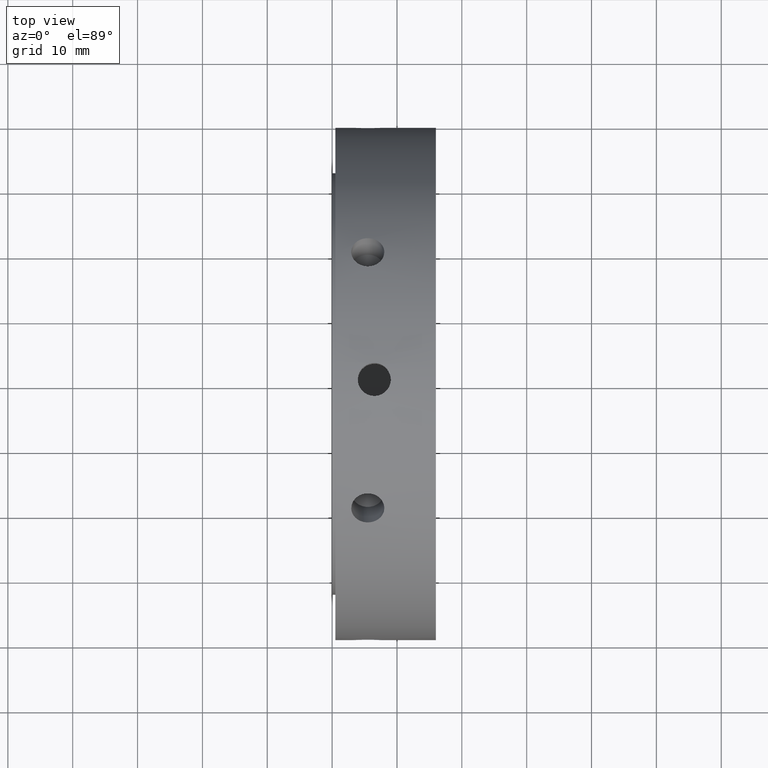
[diagram: clean part render]
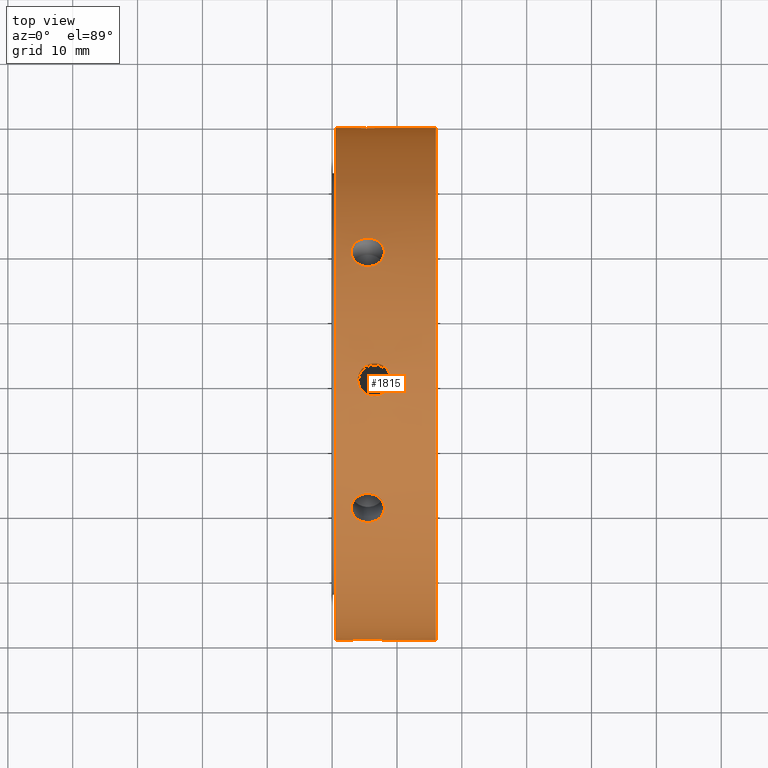
[diagram: same view with one face highlighted and labeled with its STEP entity id]
A machine part, top view. The second image highlights one B-rep face of the part: STEP entity #1815.
In plain terms, the highlighted cylindrical surface (bore or boss wall) has radius 39.5 mm, axis along (1, 0, 0).
Its self-contained STEP definition (entity closure, byte-faithful):
#534=CARTESIAN_POINT('',(2.949999999999987,19.750000000000028,34.208003449485304));
#535=VERTEX_POINT('',#534);
#536=CARTESIAN_POINT('',(8.049999999999987,19.750000000000036,34.208003449485304));
#537=VERTEX_POINT('',#536);
#538=CARTESIAN_POINT('',(2.949999999999987,19.750000000000036,34.208003449485304));
#539=CARTESIAN_POINT('',(2.949999999999987,20.027369877386569,34.047863876111094));
#540=CARTESIAN_POINT('',(3.014026088472861,20.32102763559573,33.87336074013141));
#541=CARTESIAN_POINT('',(3.274290694260217,20.857336734599571,33.545793124296672));
#542=CARTESIAN_POINT('',(3.470524285694507,21.100105391507142,33.392916843656451));
#543=CARTESIAN_POINT('',(3.923231263343356,21.481817617363845,33.148647857412776));
#544=CARTESIAN_POINT('',(4.209913168209863,21.646250583480246,33.040987129929256));
#545=CARTESIAN_POINT('',(4.838154086539575,21.863871141230632,32.897387944839174));
#546=CARTESIAN_POINT('',(5.179720664936673,21.91716674729922,32.86164636428127));
#547=CARTESIAN_POINT('',(5.820279335063301,21.91716674729922,32.86164636428127));
#548=CARTESIAN_POINT('',(6.161845913460398,21.863871141230632,32.897387944839174));
#549=CARTESIAN_POINT('',(6.790086831790107,21.646250583480246,33.040987129929256));
#550=CARTESIAN_POINT('',(7.076768736656616,21.481817617363845,33.148647857412776));
#551=CARTESIAN_POINT('',(7.529475714305464,21.100105391507142,33.392916843656451));
#552=CARTESIAN_POINT('',(7.725709305739756,20.857336734599571,33.545793124296672));
#553=CARTESIAN_POINT('',(7.985973911527113,20.32102763559573,33.87336074013141));
#554=CARTESIAN_POINT('',(8.049999999999987,20.027369877386569,34.047863876111094));
#555=CARTESIAN_POINT('',(8.049999999999987,19.750000000000036,34.208003449485304));
#556=B_SPLINE_CURVE_WITH_KNOTS('',3,(#538,#539,#540,#541,#542,#543,#544,#545,#546,#547,#548,#549,#550,#551,#552,#553,#554,#555),.UNSPECIFIED.,.F.,.U.,(4,2,2,2,2,2,2,2,4),(0.384335089087039,0.480418833111564,0.576502577136089,0.672586377655083,0.768670178174077,0.864753978693071,0.960837779212065,1.056921523236591,1.153005267261116),.UNSPECIFIED.);
#557=EDGE_CURVE('',#535,#537,#556,.T.);
#559=CARTESIAN_POINT('',(8.049999999999987,19.750000000000039,34.208003449485304));
#560=CARTESIAN_POINT('',(8.049999999999987,19.472630122613506,34.368143022859513));
#561=CARTESIAN_POINT('',(7.985973911527116,19.174677094710471,34.535206533497195));
#562=CARTESIAN_POINT('',(7.72570930573976,18.622840668438563,34.835880029597888));
#563=CARTESIAN_POINT('',(7.529475714305467,18.369061597314271,34.96968571340237));
#564=CARTESIAN_POINT('',(7.076768736656618,17.966662336942218,35.17812370480754));
#565=CARTESIAN_POINT('',(6.790086831790108,17.791208928893383,35.266696466942207));
#566=CARTESIAN_POINT('',(6.161845913460398,17.558038107767434,35.383361805794735));
#567=CARTESIAN_POINT('',(5.820279335063301,17.500437187998589,35.411646364281275));
#568=CARTESIAN_POINT('',(5.499999999999988,17.500437187998589,35.411646364281275));
#569=CARTESIAN_POINT('',(5.179720664936673,17.500437187998589,35.411646364281275));
#570=CARTESIAN_POINT('',(4.838154086539575,17.55803810776743,35.383361805794735));
#571=CARTESIAN_POINT('',(4.209913168209866,17.791208928893379,35.2666964669422));
#572=CARTESIAN_POINT('',(3.923231263343356,17.966662336942218,35.17812370480754));
#573=CARTESIAN_POINT('',(3.470524285694507,18.369061597314271,34.96968571340237));
#574=CARTESIAN_POINT('',(3.274290694260216,18.62284066843856,34.835880029597888));
#575=CARTESIAN_POINT('',(3.014026088472859,19.174677094710468,34.535206533497195));
#576=CARTESIAN_POINT('',(2.949999999999987,19.472630122613506,34.368143022859513));
#577=CARTESIAN_POINT('',(2.949999999999987,19.750000000000039,34.208003449485304));
#578=B_SPLINE_CURVE_WITH_KNOTS('',3,(#559,#560,#561,#562,#563,#564,#565,#566,#567,#568,#569,#570,#571,#572,#573,#574,#575,#576,#577),.UNSPECIFIED.,.F.,.U.,(4,2,2,2,3,2,2,2,4),(1.153005267261116,1.249089011285641,1.345172755310166,1.44125655582916,1.537340356348155,1.633424156867149,1.729507957386143,1.825591701410668,1.921675445435193),.UNSPECIFIED.);
#579=EDGE_CURVE('',#537,#535,#578,.T.);
#646=CARTESIAN_POINT('',(2.949999999999987,39.5,-2.631229E-014));
#647=VERTEX_POINT('',#646);
#648=CARTESIAN_POINT('',(8.049999999999987,39.5,-3.108624E-014));
#649=VERTEX_POINT('',#648);
#650=CARTESIAN_POINT('',(2.949999999999987,39.5,-3.018419E-014));
#651=CARTESIAN_POINT('',(2.949999999999987,39.5,-0.320279146748447));
#652=CARTESIAN_POINT('',(3.01402608847286,39.495704730306123,-0.661845793365811));
#653=CARTESIAN_POINT('',(3.274290694260216,39.480177403038056,-1.29008690530125));
#654=CARTESIAN_POINT('',(3.470524285694507,39.469166988821335,-1.576768869745943));
#655=CARTESIAN_POINT('',(3.923231263343356,39.448479954305988,-2.029475847394792));
#656=CARTESIAN_POINT('',(4.209913168209865,39.437459512373543,-2.225709337012975));
#657=CARTESIAN_POINT('',(4.838154086539575,39.421909248997977,-2.48597386095559));
#658=CARTESIAN_POINT('',(5.179720664936673,39.417603935297734,-2.550000000000031));
#659=CARTESIAN_POINT('',(5.820279335063301,39.417603935297734,-2.55000000000003));
#660=CARTESIAN_POINT('',(6.161845913460397,39.421909248997977,-2.485973860955591));
#661=CARTESIAN_POINT('',(6.790086831790107,39.437459512373543,-2.225709337012977));
#662=CARTESIAN_POINT('',(7.076768736656618,39.448479954305988,-2.029475847394793));
#663=CARTESIAN_POINT('',(7.529475714305467,39.469166988821335,-1.576768869745944));
#664=CARTESIAN_POINT('',(7.725709305739759,39.480177403038056,-1.290086905301251));
#665=CARTESIAN_POINT('',(7.985973911527116,39.495704730306123,-0.661845793365812));
#666=CARTESIAN_POINT('',(8.049999999999987,39.5,-0.320279146748448));
#667=CARTESIAN_POINT('',(8.049999999999987,39.5,-3.122502E-014));
#668=B_SPLINE_CURVE_WITH_KNOTS('',3,(#650,#651,#652,#653,#654,#655,#656,#657,#658,#659,#660,#661,#662,#663,#664,#665,#666,#667),.UNSPECIFIED.,.F.,.U.,(4,2,2,2,2,2,2,2,4),(0.384335089087039,0.480418833111564,0.576502577136089,0.672586377655083,0.768670178174077,0.864753978693072,0.960837779212066,1.056921523236591,1.153005267261116),.UNSPECIFIED.);
#669=EDGE_CURVE('',#647,#649,#668,.T.);
#671=CARTESIAN_POINT('',(8.049999999999987,39.5,-3.129441E-014));
#672=CARTESIAN_POINT('',(8.049999999999987,39.5,0.320279146748385));
#673=CARTESIAN_POINT('',(7.985973911527116,39.495704730306123,0.661845793365748));
#674=CARTESIAN_POINT('',(7.725709305739761,39.480177403038056,1.290086905301187));
#675=CARTESIAN_POINT('',(7.529475714305468,39.469166988821335,1.57676886974588));
#676=CARTESIAN_POINT('',(7.07676873665662,39.448479954305988,2.029475847394729));
#677=CARTESIAN_POINT('',(6.790086831790108,39.43745951237355,2.225709337012914));
#678=CARTESIAN_POINT('',(6.161845913460398,39.421909248997984,2.48597386095553));
#679=CARTESIAN_POINT('',(5.820279335063302,39.417603935297734,2.54999999999997));
#680=CARTESIAN_POINT('',(5.499999999999988,39.417603935297734,2.54999999999997));
#681=CARTESIAN_POINT('',(5.179720664936673,39.417603935297734,2.54999999999997));
#682=CARTESIAN_POINT('',(4.838154086539576,39.421909248997984,2.48597386095553));
#683=CARTESIAN_POINT('',(4.209913168209866,39.43745951237355,2.225709337012915));
#684=CARTESIAN_POINT('',(3.923231263343356,39.448479954305988,2.029475847394731));
#685=CARTESIAN_POINT('',(3.470524285694507,39.469166988821335,1.576768869745883));
#686=CARTESIAN_POINT('',(3.274290694260215,39.480177403038056,1.290086905301189));
#687=CARTESIAN_POINT('',(3.014026088472859,39.495704730306123,0.661845793365749));
#688=CARTESIAN_POINT('',(2.949999999999987,39.5,0.320279146748386));
#689=CARTESIAN_POINT('',(2.949999999999987,39.5,-3.032297E-014));
#690=B_SPLINE_CURVE_WITH_KNOTS('',3,(#671,#672,#673,#674,#675,#676,#677,#678,#679,#680,#681,#682,#683,#684,#685,#686,#687,#688,#689),.UNSPECIFIED.,.F.,.U.,(4,2,2,2,3,2,2,2,4),(1.153005267261116,1.249089011285641,1.345172755310166,1.44125655582916,1.537340356348155,1.633424156867149,1.729507957386144,1.825591701410668,1.921675445435193),.UNSPECIFIED.);
#691=EDGE_CURVE('',#649,#647,#690,.T.);
#758=CARTESIAN_POINT('',(2.949999999999987,19.749999999999989,-34.208003449485332));
#759=VERTEX_POINT('',#758);
#760=CARTESIAN_POINT('',(8.049999999999987,19.749999999999982,-34.208003449485332));
#761=VERTEX_POINT('',#760);
#762=CARTESIAN_POINT('',(2.949999999999988,19.749999999999986,-34.208003449485325));
#763=CARTESIAN_POINT('',(2.949999999999988,19.472630122613456,-34.368143022859535));
#764=CARTESIAN_POINT('',(3.014026088472859,19.174677094710422,-34.535206533497224));
#765=CARTESIAN_POINT('',(3.274290694260215,18.622840668438513,-34.835880029597924));
#766=CARTESIAN_POINT('',(3.470524285694507,18.369061597314222,-34.969685713402399));
#767=CARTESIAN_POINT('',(3.923231263343356,17.966662336942171,-35.178123704807561));
#768=CARTESIAN_POINT('',(4.209913168209865,17.791208928893333,-35.266696466942228));
#769=CARTESIAN_POINT('',(4.838154086539574,17.558038107767381,-35.383361805794763));
#770=CARTESIAN_POINT('',(5.179720664936673,17.500437187998543,-35.411646364281303));
#771=CARTESIAN_POINT('',(5.820279335063301,17.500437187998543,-35.411646364281303));
#772=CARTESIAN_POINT('',(6.161845913460398,17.558038107767388,-35.383361805794763));
#773=CARTESIAN_POINT('',(6.790086831790108,17.791208928893337,-35.266696466942228));
#774=CARTESIAN_POINT('',(7.076768736656618,17.966662336942171,-35.178123704807561));
#775=CARTESIAN_POINT('',(7.529475714305467,18.369061597314222,-34.969685713402392));
#776=CARTESIAN_POINT('',(7.725709305739761,18.622840668438517,-34.835880029597924));
#777=CARTESIAN_POINT('',(7.985973911527116,19.174677094710422,-34.535206533497224));
#778=CARTESIAN_POINT('',(8.049999999999987,19.472630122613456,-34.368143022859535));
#779=CARTESIAN_POINT('',(8.049999999999987,19.749999999999986,-34.208003449485325));
#780=B_SPLINE_CURVE_WITH_KNOTS('',3,(#762,#763,#764,#765,#766,#767,#768,#769,#770,#771,#772,#773,#774,#775,#776,#777,#778,#779),.UNSPECIFIED.,.F.,.U.,(4,2,2,2,2,2,2,2,4),(0.384335089087039,0.480418833111564,0.576502577136089,0.672586377655083,0.768670178174077,0.864753978693072,0.960837779212066,1.056921523236591,1.153005267261116),.UNSPECIFIED.);
#781=EDGE_CURVE('',#759,#761,#780,.T.);
#783=CARTESIAN_POINT('',(8.049999999999987,19.749999999999986,-34.208003449485325));
#784=CARTESIAN_POINT('',(8.049999999999987,20.027369877386519,-34.047863876111116));
#785=CARTESIAN_POINT('',(7.985973911527116,20.32102763559568,-33.873360740131446));
#786=CARTESIAN_POINT('',(7.725709305739761,20.857336734599521,-33.545793124296701));
#787=CARTESIAN_POINT('',(7.529475714305467,21.1001053915071,-33.392916843656486));
#788=CARTESIAN_POINT('',(7.076768736656618,21.481817617363799,-33.148647857412811));
#789=CARTESIAN_POINT('',(6.790086831790109,21.646250583480196,-33.040987129929292));
#790=CARTESIAN_POINT('',(6.161845913460398,21.863871141230582,-32.89738794483921));
#791=CARTESIAN_POINT('',(5.820279335063302,21.917166747299177,-32.861646364281299));
#792=CARTESIAN_POINT('',(5.499999999999988,21.917166747299177,-32.861646364281299));
#793=CARTESIAN_POINT('',(5.179720664936673,21.917166747299177,-32.861646364281299));
#794=CARTESIAN_POINT('',(4.838154086539577,21.863871141230582,-32.89738794483921));
#795=CARTESIAN_POINT('',(4.209913168209866,21.646250583480196,-33.040987129929292));
#796=CARTESIAN_POINT('',(3.923231263343356,21.481817617363799,-33.148647857412811));
#797=CARTESIAN_POINT('',(3.470524285694507,21.1001053915071,-33.392916843656486));
#798=CARTESIAN_POINT('',(3.274290694260213,20.857336734599521,-33.545793124296701));
#799=CARTESIAN_POINT('',(3.014026088472858,20.32102763559568,-33.873360740131446));
#800=CARTESIAN_POINT('',(2.949999999999987,20.027369877386519,-34.047863876111116));
#801=CARTESIAN_POINT('',(2.949999999999987,19.749999999999986,-34.208003449485325));
#802=B_SPLINE_CURVE_WITH_KNOTS('',3,(#783,#784,#785,#786,#787,#788,#789,#790,#791,#792,#793,#794,#795,#796,#797,#798,#799,#800,#801),.UNSPECIFIED.,.F.,.U.,(4,2,2,2,3,2,2,2,4),(1.153005267261116,1.249089011285641,1.345172755310166,1.441256555829161,1.537340356348155,1.633424156867149,1.729507957386144,1.825591701410669,1.921675445435194),.UNSPECIFIED.);
#803=EDGE_CURVE('',#761,#759,#802,.T.);
#870=CARTESIAN_POINT('',(2.949999999999987,-19.750000000000011,-34.208003449485318));
#871=VERTEX_POINT('',#870);
#872=CARTESIAN_POINT('',(8.049999999999987,-19.750000000000018,-34.208003449485311));
#873=VERTEX_POINT('',#872);
#874=CARTESIAN_POINT('',(2.949999999999987,-19.750000000000018,-34.208003449485311));
#875=CARTESIAN_POINT('',(2.949999999999987,-20.027369877386548,-34.047863876111101));
#876=CARTESIAN_POINT('',(3.014026088472861,-20.321027635595712,-33.873360740131425));
#877=CARTESIAN_POINT('',(3.274290694260218,-20.857336734599553,-33.545793124296679));
#878=CARTESIAN_POINT('',(3.470524285694506,-21.100105391507125,-33.392916843656465));
#879=CARTESIAN_POINT('',(3.923231263343356,-21.481817617363824,-33.148647857412783));
#880=CARTESIAN_POINT('',(4.209913168209863,-21.646250583480221,-33.040987129929263));
#881=CARTESIAN_POINT('',(4.838154086539575,-21.863871141230607,-32.897387944839181));
#882=CARTESIAN_POINT('',(5.179720664936673,-21.917166747299206,-32.861646364281285));
#883=CARTESIAN_POINT('',(5.820279335063301,-21.917166747299206,-32.861646364281285));
#884=CARTESIAN_POINT('',(6.161845913460398,-21.863871141230607,-32.897387944839181));
#885=CARTESIAN_POINT('',(6.790086831790108,-21.646250583480221,-33.040987129929263));
#886=CARTESIAN_POINT('',(7.076768736656616,-21.481817617363824,-33.148647857412783));
#887=CARTESIAN_POINT('',(7.529475714305466,-21.100105391507125,-33.392916843656465));
#888=CARTESIAN_POINT('',(7.72570930573976,-20.857336734599549,-33.545793124296686));
#889=CARTESIAN_POINT('',(7.985973911527116,-20.321027635595705,-33.873360740131432));
#890=CARTESIAN_POINT('',(8.049999999999987,-20.027369877386548,-34.047863876111101));
#891=CARTESIAN_POINT('',(8.049999999999987,-19.750000000000018,-34.208003449485311));
#892=B_SPLINE_CURVE_WITH_KNOTS('',3,(#874,#875,#876,#877,#878,#879,#880,#881,#882,#883,#884,#885,#886,#887,#888,#889,#890,#891),.UNSPECIFIED.,.F.,.U.,(4,2,2,2,2,2,2,2,4),(0.384335089087039,0.480418833111564,0.576502577136089,0.672586377655083,0.768670178174077,0.864753978693072,0.960837779212066,1.056921523236591,1.153005267261116),.UNSPECIFIED.);
#893=EDGE_CURVE('',#871,#873,#892,.T.);
#895=CARTESIAN_POINT('',(8.049999999999987,-19.750000000000018,-34.208003449485311));
#896=CARTESIAN_POINT('',(8.049999999999987,-19.472630122613484,-34.36814302285952));
#897=CARTESIAN_POINT('',(7.985973911527116,-19.17467709471045,-34.535206533497202));
#898=CARTESIAN_POINT('',(7.72570930573976,-18.622840668438542,-34.835880029597902));
#899=CARTESIAN_POINT('',(7.529475714305468,-18.369061597314253,-34.969685713402384));
#900=CARTESIAN_POINT('',(7.07676873665662,-17.9666623369422,-35.178123704807547));
#901=CARTESIAN_POINT('',(6.790086831790109,-17.791208928893361,-35.266696466942214));
#902=CARTESIAN_POINT('',(6.161845913460398,-17.558038107767413,-35.383361805794749));
#903=CARTESIAN_POINT('',(5.820279335063301,-17.500437187998568,-35.411646364281289));
#904=CARTESIAN_POINT('',(5.499999999999988,-17.500437187998568,-35.411646364281289));
#905=CARTESIAN_POINT('',(5.179720664936673,-17.500437187998568,-35.411646364281289));
#906=CARTESIAN_POINT('',(4.838154086539576,-17.558038107767413,-35.383361805794749));
#907=CARTESIAN_POINT('',(4.209913168209865,-17.791208928893361,-35.266696466942214));
#908=CARTESIAN_POINT('',(3.923231263343356,-17.9666623369422,-35.178123704807547));
#909=CARTESIAN_POINT('',(3.470524285694508,-18.36906159731425,-34.969685713402384));
#910=CARTESIAN_POINT('',(3.274290694260215,-18.622840668438542,-34.835880029597902));
#911=CARTESIAN_POINT('',(3.014026088472859,-19.174677094710447,-34.535206533497202));
#912=CARTESIAN_POINT('',(2.949999999999988,-19.472630122613484,-34.36814302285952));
#913=CARTESIAN_POINT('',(2.949999999999988,-19.750000000000018,-34.208003449485311));
#914=B_SPLINE_CURVE_WITH_KNOTS('',3,(#895,#896,#897,#898,#899,#900,#901,#902,#903,#904,#905,#906,#907,#908,#909,#910,#911,#912,#913),.UNSPECIFIED.,.F.,.U.,(4,2,2,2,3,2,2,2,4),(1.153005267261116,1.249089011285641,1.345172755310166,1.44125655582916,1.537340356348155,1.633424156867149,1.729507957386143,1.825591701410668,1.921675445435193),.UNSPECIFIED.);
#915=EDGE_CURVE('',#873,#871,#914,.T.);
#982=CARTESIAN_POINT('',(2.949999999999987,-39.5,1.096345E-014));
#983=VERTEX_POINT('',#982);
#984=CARTESIAN_POINT('',(8.049999999999987,-39.5,1.554312E-014));
#985=VERTEX_POINT('',#984);
#986=CARTESIAN_POINT('',(2.949999999999987,-39.5,1.360023E-014));
#987=CARTESIAN_POINT('',(2.949999999999987,-39.5,0.320279146748431));
#988=CARTESIAN_POINT('',(3.014026088472859,-39.495704730306123,0.661845793365794));
#989=CARTESIAN_POINT('',(3.274290694260214,-39.480177403038056,1.290086905301233));
#990=CARTESIAN_POINT('',(3.470524285694507,-39.469166988821335,1.576768869745926));
#991=CARTESIAN_POINT('',(3.923231263343356,-39.448479954305988,2.029475847394775));
#992=CARTESIAN_POINT('',(4.209913168209865,-39.437459512373543,2.225709337012959));
#993=CARTESIAN_POINT('',(4.838154086539575,-39.421909248997977,2.485973860955574));
#994=CARTESIAN_POINT('',(5.179720664936673,-39.417603935297734,2.550000000000015));
#995=CARTESIAN_POINT('',(5.820279335063301,-39.417603935297734,2.550000000000015));
#996=CARTESIAN_POINT('',(6.161845913460398,-39.421909248997977,2.485973860955574));
#997=CARTESIAN_POINT('',(6.790086831790108,-39.437459512373543,2.225709337012959));
#998=CARTESIAN_POINT('',(7.076768736656618,-39.448479954305988,2.029475847394776));
#999=CARTESIAN_POINT('',(7.529475714305467,-39.469166988821335,1.576768869745928));
#1000=CARTESIAN_POINT('',(7.725709305739759,-39.480177403038056,1.290086905301234));
#1001=CARTESIAN_POINT('',(7.985973911527116,-39.495704730306123,0.661845793365795));
#1002=CARTESIAN_POINT('',(8.049999999999987,-39.5,0.320279146748431));
#1003=CARTESIAN_POINT('',(8.049999999999987,-39.5,1.457168E-014));
#1004=B_SPLINE_CURVE_WITH_KNOTS('',3,(#986,#987,#988,#989,#990,#991,#992,#993,#994,#995,#996,#997,#998,#999,#1000,#1001,#1002,#1003),.UNSPECIFIED.,.F.,.U.,(4,2,2,2,2,2,2,2,4),(0.384335089087039,0.480418833111564,0.576502577136089,0.672586377655083,0.768670178174077,0.864753978693072,0.960837779212066,1.056921523236591,1.153005267261116),.UNSPECIFIED.);
#1005=EDGE_CURVE('',#983,#985,#1004,.T.);
#1007=CARTESIAN_POINT('',(8.049999999999987,-39.5,1.457168E-014));
#1008=CARTESIAN_POINT('',(8.049999999999987,-39.5,-0.320279146748401));
#1009=CARTESIAN_POINT('',(7.985973911527116,-39.495704730306123,-0.661845793365764));
#1010=CARTESIAN_POINT('',(7.725709305739761,-39.480177403038056,-1.290086905301202));
#1011=CARTESIAN_POINT('',(7.52947571430547,-39.469166988821335,-1.576768869745896));
#1012=CARTESIAN_POINT('',(7.07676873665662,-39.448479954305988,-2.029475847394746));
#1013=CARTESIAN_POINT('',(6.790086831790108,-39.43745951237355,-2.225709337012931));
#1014=CARTESIAN_POINT('',(6.161845913460398,-39.421909248997984,-2.485973860955546));
#1015=CARTESIAN_POINT('',(5.820279335063301,-39.417603935297734,-2.549999999999986));
#1016=CARTESIAN_POINT('',(5.499999999999988,-39.417603935297734,-2.549999999999986));
#1017=CARTESIAN_POINT('',(5.179720664936673,-39.417603935297734,-2.549999999999986));
#1018=CARTESIAN_POINT('',(4.838154086539576,-39.421909248997984,-2.485973860955546));
#1019=CARTESIAN_POINT('',(4.209913168209866,-39.43745951237355,-2.225709337012932));
#1020=CARTESIAN_POINT('',(3.923231263343356,-39.448479954305988,-2.029475847394748));
#1021=CARTESIAN_POINT('',(3.470524285694507,-39.469166988821335,-1.576768869745899));
#1022=CARTESIAN_POINT('',(3.274290694260215,-39.480177403038056,-1.290086905301205));
#1023=CARTESIAN_POINT('',(3.014026088472859,-39.495704730306123,-0.661845793365766));
#1024=CARTESIAN_POINT('',(2.949999999999987,-39.5,-0.320279146748402));
#1025=CARTESIAN_POINT('',(2.949999999999987,-39.5,1.477984E-014));
#1026=B_SPLINE_CURVE_WITH_KNOTS('',3,(#1007,#1008,#1009,#1010,#1011,#1012,#1013,#1014,#1015,#1016,#1017,#1018,#1019,#1020,#1021,#1022,#1023,#1024,#1025),.UNSPECIFIED.,.F.,.U.,(4,2,2,2,3,2,2,2,4),(1.153005267261116,1.249089011285641,1.345172755310166,1.441256555829161,1.537340356348155,1.633424156867149,1.729507957386144,1.825591701410669,1.921675445435194),.UNSPECIFIED.);
#1027=EDGE_CURVE('',#985,#983,#1026,.T.);
#1131=CARTESIAN_POINT('',(2.949999999999987,-19.749999999999993,34.208003449485325));
#1132=VERTEX_POINT('',#1131);
#1133=CARTESIAN_POINT('',(8.049999999999987,-19.749999999999989,34.208003449485325));
#1134=VERTEX_POINT('',#1133);
#1135=CARTESIAN_POINT('',(2.949999999999988,-19.749999999999993,34.208003449485325));
#1136=CARTESIAN_POINT('',(2.949999999999988,-19.472630122613459,34.368143022859535));
#1137=CARTESIAN_POINT('',(3.014026088472859,-19.174677094710429,34.535206533497217));
#1138=CARTESIAN_POINT('',(3.274290694260213,-18.622840668438524,34.835880029597917));
#1139=CARTESIAN_POINT('',(3.470524285694507,-18.369061597314229,34.969685713402392));
#1140=CARTESIAN_POINT('',(3.923231263343355,-17.966662336942175,35.178123704807561));
#1141=CARTESIAN_POINT('',(4.209913168209863,-17.791208928893337,35.266696466942228));
#1142=CARTESIAN_POINT('',(4.838154086539573,-17.558038107767388,35.383361805794763));
#1143=CARTESIAN_POINT('',(5.179720664936673,-17.500437187998543,35.411646364281296));
#1144=CARTESIAN_POINT('',(5.820279335063301,-17.500437187998543,35.411646364281296));
#1145=CARTESIAN_POINT('',(6.161845913460401,-17.558038107767388,35.383361805794763));
#1146=CARTESIAN_POINT('',(6.790086831790111,-17.791208928893337,35.266696466942228));
#1147=CARTESIAN_POINT('',(7.076768736656618,-17.966662336942171,35.178123704807554));
#1148=CARTESIAN_POINT('',(7.529475714305467,-18.369061597314225,34.969685713402392));
#1149=CARTESIAN_POINT('',(7.725709305739762,-18.622840668438521,34.835880029597924));
#1150=CARTESIAN_POINT('',(7.985973911527116,-19.174677094710425,34.535206533497224));
#1151=CARTESIAN_POINT('',(8.049999999999987,-19.472630122613459,34.368143022859535));
#1152=CARTESIAN_POINT('',(8.049999999999987,-19.749999999999993,34.208003449485325));
#1153=B_SPLINE_CURVE_WITH_KNOTS('',3,(#1135,#1136,#1137,#1138,#1139,#1140,#1141,#1142,#1143,#1144,#1145,#1146,#1147,#1148,#1149,#1150,#1151,#1152),.UNSPECIFIED.,.F.,.U.,(4,2,2,2,2,2,2,2,4),(0.384335089087039,0.480418833111564,0.576502577136088,0.672586377655083,0.768670178174077,0.864753978693071,0.960837779212066,1.056921523236591,1.153005267261116),.UNSPECIFIED.);
#1154=EDGE_CURVE('',#1132,#1134,#1153,.T.);
#1156=CARTESIAN_POINT('',(8.049999999999987,-19.749999999999993,34.208003449485325));
#1157=CARTESIAN_POINT('',(8.049999999999987,-20.027369877386523,34.047863876111123));
#1158=CARTESIAN_POINT('',(7.985973911527116,-20.321027635595676,33.873360740131446));
#1159=CARTESIAN_POINT('',(7.725709305739762,-20.857336734599521,33.545793124296701));
#1160=CARTESIAN_POINT('',(7.529475714305467,-21.1001053915071,33.392916843656486));
#1161=CARTESIAN_POINT('',(7.076768736656618,-21.481817617363799,33.148647857412797));
#1162=CARTESIAN_POINT('',(6.790086831790108,-21.646250583480203,33.040987129929285));
#1163=CARTESIAN_POINT('',(6.161845913460398,-21.86387114123059,32.897387944839203));
#1164=CARTESIAN_POINT('',(5.820279335063301,-21.917166747299181,32.861646364281299));
#1165=CARTESIAN_POINT('',(5.499999999999988,-21.917166747299181,32.861646364281299));
#1166=CARTESIAN_POINT('',(5.179720664936673,-21.917166747299181,32.861646364281299));
#1167=CARTESIAN_POINT('',(4.838154086539578,-21.86387114123059,32.897387944839203));
#1168=CARTESIAN_POINT('',(4.209913168209868,-21.646250583480203,33.040987129929285));
#1169=CARTESIAN_POINT('',(3.923231263343356,-21.481817617363799,33.148647857412797));
#1170=CARTESIAN_POINT('',(3.470524285694507,-21.1001053915071,33.392916843656486));
#1171=CARTESIAN_POINT('',(3.274290694260216,-20.857336734599528,33.545793124296701));
#1172=CARTESIAN_POINT('',(3.01402608847286,-20.321027635595691,33.873360740131439));
#1173=CARTESIAN_POINT('',(2.949999999999987,-20.027369877386519,34.047863876111123));
#1174=CARTESIAN_POINT('',(2.949999999999987,-19.749999999999986,34.208003449485332));
#1175=B_SPLINE_CURVE_WITH_KNOTS('',3,(#1156,#1157,#1158,#1159,#1160,#1161,#1162,#1163,#1164,#1165,#1166,#1167,#1168,#1169,#1170,#1171,#1172,#1173,#1174),.UNSPECIFIED.,.F.,.U.,(4,2,2,2,3,2,2,2,4),(1.153005267261116,1.249089011285641,1.345172755310166,1.44125655582916,1.537340356348155,1.633424156867149,1.729507957386143,1.825591701410668,1.921675445435193),.UNSPECIFIED.);
#1176=EDGE_CURVE('',#1134,#1132,#1175,.T.);
#1255=CARTESIAN_POINT('',(6.499999999999987,35.411646364281289,-17.500437187998568));
#1256=VERTEX_POINT('',#1255);
#1257=CARTESIAN_POINT('',(6.499999999999987,35.411646364281289,-17.500437187998578));
#1258=CARTESIAN_POINT('',(6.179720664936673,35.411646364281289,-17.500437187998578));
#1259=CARTESIAN_POINT('',(5.838154086539578,35.383361805794742,-17.55803810776742));
#1260=CARTESIAN_POINT('',(5.209913168209869,35.266696466942207,-17.791208928893369));
#1261=CARTESIAN_POINT('',(4.923231263343356,35.17812370480754,-17.9666623369422));
#1262=CARTESIAN_POINT('',(4.470524285694507,34.96968571340237,-18.36906159731425));
#1263=CARTESIAN_POINT('',(4.274290694260218,34.835880029597902,-18.622840668438545));
#1264=CARTESIAN_POINT('',(4.014026088472861,34.535206533497202,-19.174677094710454));
#1265=CARTESIAN_POINT('',(3.949999999999987,34.368143022859513,-19.472630122613484));
#1266=CARTESIAN_POINT('',(3.949999999999986,34.047863876111094,-20.027369877386548));
#1267=CARTESIAN_POINT('',(4.014026088472857,33.873360740131425,-20.321027635595716));
#1268=CARTESIAN_POINT('',(4.274290694260215,33.545793124296679,-20.85733673459956));
#1269=CARTESIAN_POINT('',(4.470524285694506,33.392916843656465,-21.100105391507128));
#1270=CARTESIAN_POINT('',(4.923231263343354,33.148647857412776,-21.481817617363834));
#1271=CARTESIAN_POINT('',(5.209913168209866,33.040987129929263,-21.646250583480231));
#1272=CARTESIAN_POINT('',(5.838154086539574,32.897387944839181,-21.863871141230618));
#1273=CARTESIAN_POINT('',(6.179720664936673,32.861646364281285,-21.917166747299198));
#1274=CARTESIAN_POINT('',(6.820279335063302,32.861646364281285,-21.917166747299198));
#1275=CARTESIAN_POINT('',(7.161845913460398,32.897387944839181,-21.863871141230618));
#1276=CARTESIAN_POINT('',(7.790086831790108,33.040987129929263,-21.646250583480231));
#1277=CARTESIAN_POINT('',(8.076768736656618,33.148647857412783,-21.481817617363834));
#1278=CARTESIAN_POINT('',(8.529475714305468,33.392916843656465,-21.100105391507128));
#1279=CARTESIAN_POINT('',(8.725709305739759,33.545793124296679,-20.85733673459956));
#1280=CARTESIAN_POINT('',(8.985973911527116,33.873360740131425,-20.321027635595716));
#1281=CARTESIAN_POINT('',(9.049999999999987,34.047863876111094,-20.027369877386548));
#1282=CARTESIAN_POINT('',(9.049999999999987,34.368143022859513,-19.472630122613484));
#1283=CARTESIAN_POINT('',(8.985973911527115,34.535206533497202,-19.174677094710454));
#1284=CARTESIAN_POINT('',(8.725709305739759,34.835880029597902,-18.622840668438545));
#1285=CARTESIAN_POINT('',(8.529475714305468,34.96968571340237,-18.36906159731425));
#1286=CARTESIAN_POINT('',(8.076768736656618,35.17812370480754,-17.966662336942196));
#1287=CARTESIAN_POINT('',(7.790086831790105,35.266696466942207,-17.791208928893369));
#1288=CARTESIAN_POINT('',(7.161845913460397,35.383361805794742,-17.55803810776742));
#1289=CARTESIAN_POINT('',(6.820279335063301,35.411646364281289,-17.500437187998578));
#1290=CARTESIAN_POINT('',(6.499999999999987,35.411646364281289,-17.500437187998578));
#1291=B_SPLINE_CURVE_WITH_KNOTS('',3,(#1257,#1258,#1259,#1260,#1261,#1262,#1263,#1264,#1265,#1266,#1267,#1268,#1269,#1270,#1271,#1272,#1273,#1274,#1275,#1276,#1277,#1278,#1279,#1280,#1281,#1282,#1283,#1284,#1285,#1286,#1287,#1288,#1289,#1290),.UNSPECIFIED.,.T.,.U.,(4,2,2,2,2,2,2,2,2,2,2,2,2,2,2,2,4),(0.0,0.096083800518994,0.192167601037988,0.288251345062513,0.384335089087039,0.480418833111564,0.576502577136089,0.672586377655083,0.768670178174077,0.864753978693071,0.960837779212066,1.056921523236591,1.153005267261116,1.249089011285641,1.345172755310166,1.441256555829161,1.537340356348155),.UNSPECIFIED.);
#1292=EDGE_CURVE('',#1256,#1256,#1291,.T.);
#1412=CARTESIAN_POINT('',(6.499999999999987,-32.861646364281306,-21.917166747299181));
#1413=VERTEX_POINT('',#1412);
#1414=CARTESIAN_POINT('',(6.499999999999987,-32.861646364281306,-21.917166747299181));
#1415=CARTESIAN_POINT('',(6.179720664936673,-32.861646364281306,-21.917166747299181));
#1416=CARTESIAN_POINT('',(5.838154086539577,-32.89738794483921,-21.86387114123059));
#1417=CARTESIAN_POINT('',(5.209913168209867,-33.040987129929292,-21.646250583480203));
#1418=CARTESIAN_POINT('',(4.923231263343356,-33.148647857412797,-21.481817617363809));
#1419=CARTESIAN_POINT('',(4.470524285694506,-33.392916843656479,-21.100105391507107));
#1420=CARTESIAN_POINT('',(4.274290694260219,-33.545793124296701,-20.857336734599535));
#1421=CARTESIAN_POINT('',(4.014026088472861,-33.873360740131446,-20.321027635595691));
#1422=CARTESIAN_POINT('',(3.949999999999987,-34.047863876111116,-20.027369877386523));
#1423=CARTESIAN_POINT('',(3.949999999999987,-34.368143022859535,-19.472630122613456));
#1424=CARTESIAN_POINT('',(4.014026088472858,-34.535206533497217,-19.174677094710425));
#1425=CARTESIAN_POINT('',(4.274290694260213,-34.835880029597909,-18.622840668438517));
#1426=CARTESIAN_POINT('',(4.470524285694506,-34.969685713402392,-18.369061597314222));
#1427=CARTESIAN_POINT('',(4.923231263343356,-35.178123704807554,-17.966662336942171));
#1428=CARTESIAN_POINT('',(5.209913168209864,-35.266696466942228,-17.79120892889334));
#1429=CARTESIAN_POINT('',(5.838154086539574,-35.383361805794763,-17.558038107767388));
#1430=CARTESIAN_POINT('',(6.179720664936673,-35.411646364281289,-17.500437187998539));
#1431=CARTESIAN_POINT('',(6.820279335063302,-35.411646364281289,-17.500437187998539));
#1432=CARTESIAN_POINT('',(7.161845913460399,-35.383361805794763,-17.558038107767388));
#1433=CARTESIAN_POINT('',(7.790086831790109,-35.266696466942228,-17.79120892889334));
#1434=CARTESIAN_POINT('',(8.076768736656618,-35.178123704807561,-17.966662336942171));
#1435=CARTESIAN_POINT('',(8.529475714305468,-34.969685713402392,-18.369061597314222));
#1436=CARTESIAN_POINT('',(8.725709305739761,-34.835880029597917,-18.622840668438517));
#1437=CARTESIAN_POINT('',(8.985973911527116,-34.535206533497217,-19.174677094710425));
#1438=CARTESIAN_POINT('',(9.049999999999987,-34.368143022859535,-19.472630122613456));
#1439=CARTESIAN_POINT('',(9.049999999999987,-34.047863876111109,-20.027369877386523));
#1440=CARTESIAN_POINT('',(8.985973911527115,-33.873360740131439,-20.321027635595691));
#1441=CARTESIAN_POINT('',(8.725709305739756,-33.545793124296701,-20.857336734599528));
#1442=CARTESIAN_POINT('',(8.529475714305468,-33.392916843656479,-21.100105391507107));
#1443=CARTESIAN_POINT('',(8.076768736656618,-33.148647857412797,-21.481817617363809));
#1444=CARTESIAN_POINT('',(7.790086831790108,-33.040987129929292,-21.646250583480203));
#1445=CARTESIAN_POINT('',(7.161845913460398,-32.89738794483921,-21.86387114123059));
#1446=CARTESIAN_POINT('',(6.820279335063301,-32.861646364281306,-21.917166747299181));
#1447=CARTESIAN_POINT('',(6.499999999999987,-32.861646364281306,-21.917166747299181));
#1448=B_SPLINE_CURVE_WITH_KNOTS('',3,(#1414,#1415,#1416,#1417,#1418,#1419,#1420,#1421,#1422,#1423,#1424,#1425,#1426,#1427,#1428,#1429,#1430,#1431,#1432,#1433,#1434,#1435,#1436,#1437,#1438,#1439,#1440,#1441,#1442,#1443,#1444,#1445,#1446,#1447),.UNSPECIFIED.,.T.,.U.,(4,2,2,2,2,2,2,2,2,2,2,2,2,2,2,2,4),(0.0,0.096083800518994,0.192167601037988,0.288251345062514,0.384335089087039,0.480418833111564,0.576502577136089,0.672586377655084,0.768670178174078,0.864753978693072,0.960837779212067,1.056921523236592,1.153005267261117,1.249089011285642,1.345172755310168,1.441256555829162,1.537340356348156),.UNSPECIFIED.);
#1449=EDGE_CURVE('',#1413,#1413,#1448,.T.);
#1569=CARTESIAN_POINT('',(6.499999999999987,-2.55,39.417603935297734));
#1570=VERTEX_POINT('',#1569);
#1571=CARTESIAN_POINT('',(6.499999999999987,-2.55,39.417603935297734));
#1572=CARTESIAN_POINT('',(6.179720664936673,-2.55,39.417603935297734));
#1573=CARTESIAN_POINT('',(5.838154086539575,-2.48597386095556,39.421909248997984));
#1574=CARTESIAN_POINT('',(5.209913168209866,-2.225709337012945,39.43745951237355));
#1575=CARTESIAN_POINT('',(4.923231263343356,-2.029475847394762,39.448479954305988));
#1576=CARTESIAN_POINT('',(4.470524285694507,-1.576768869745913,39.469166988821335));
#1577=CARTESIAN_POINT('',(4.274290694260215,-1.290086905301219,39.480177403038056));
#1578=CARTESIAN_POINT('',(4.01402608847286,-0.66184579336578,39.495704730306123));
#1579=CARTESIAN_POINT('',(3.949999999999987,-0.320279146748417,39.5));
#1580=CARTESIAN_POINT('',(3.949999999999987,0.320279146748416,39.5));
#1581=CARTESIAN_POINT('',(4.014026088472859,0.661845793365779,39.495704730306123));
#1582=CARTESIAN_POINT('',(4.274290694260215,1.290086905301219,39.480177403038056));
#1583=CARTESIAN_POINT('',(4.470524285694507,1.576768869745913,39.469166988821343));
#1584=CARTESIAN_POINT('',(4.923231263343356,2.029475847394762,39.448479954305988));
#1585=CARTESIAN_POINT('',(5.209913168209866,2.225709337012945,39.43745951237355));
#1586=CARTESIAN_POINT('',(5.838154086539575,2.48597386095556,39.421909248997984));
#1587=CARTESIAN_POINT('',(6.179720664936673,2.55,39.417603935297734));
#1588=CARTESIAN_POINT('',(6.820279335063302,2.55,39.417603935297734));
#1589=CARTESIAN_POINT('',(7.161845913460398,2.48597386095556,39.421909248997984));
#1590=CARTESIAN_POINT('',(7.790086831790106,2.225709337012946,39.43745951237355));
#1591=CARTESIAN_POINT('',(8.076768736656618,2.029475847394762,39.448479954305988));
#1592=CARTESIAN_POINT('',(8.529475714305466,1.576768869745913,39.469166988821335));
#1593=CARTESIAN_POINT('',(8.725709305739759,1.290086905301219,39.480177403038056));
#1594=CARTESIAN_POINT('',(8.985973911527115,0.66184579336578,39.495704730306123));
#1595=CARTESIAN_POINT('',(9.049999999999987,0.320279146748417,39.5));
#1596=CARTESIAN_POINT('',(9.049999999999987,-0.320279146748416,39.5));
#1597=CARTESIAN_POINT('',(8.985973911527115,-0.66184579336578,39.495704730306123));
#1598=CARTESIAN_POINT('',(8.725709305739759,-1.290086905301219,39.480177403038056));
#1599=CARTESIAN_POINT('',(8.529475714305468,-1.576768869745913,39.469166988821335));
#1600=CARTESIAN_POINT('',(8.076768736656618,-2.029475847394761,39.448479954305988));
#1601=CARTESIAN_POINT('',(7.790086831790108,-2.225709337012945,39.43745951237355));
#1602=CARTESIAN_POINT('',(7.161845913460398,-2.48597386095556,39.421909248997984));
#1603=CARTESIAN_POINT('',(6.820279335063303,-2.55,39.417603935297734));
#1604=CARTESIAN_POINT('',(6.499999999999988,-2.55,39.417603935297734));
#1605=B_SPLINE_CURVE_WITH_KNOTS('',3,(#1571,#1572,#1573,#1574,#1575,#1576,#1577,#1578,#1579,#1580,#1581,#1582,#1583,#1584,#1585,#1586,#1587,#1588,#1589,#1590,#1591,#1592,#1593,#1594,#1595,#1596,#1597,#1598,#1599,#1600,#1601,#1602,#1603,#1604),.UNSPECIFIED.,.T.,.U.,(4,2,2,2,2,2,2,2,2,2,2,2,2,2,2,2,4),(0.0,0.096083800518994,0.192167601037989,0.288251345062514,0.384335089087039,0.480418833111564,0.576502577136089,0.672586377655083,0.768670178174077,0.864753978693072,0.960837779212066,1.056921523236591,1.153005267261116,1.249089011285641,1.345172755310166,1.44125655582916,1.537340356348155),.UNSPECIFIED.);
#1606=EDGE_CURVE('',#1570,#1570,#1605,.T.);
#1748=CARTESIAN_POINT('',(0.499999999999989,39.5,0.0));
#1749=VERTEX_POINT('',#1748);
#1750=CARTESIAN_POINT('',(0.499999999999989,0.0,0.0));
#1751=DIRECTION('',(1.0,0.0,0.0));
#1752=DIRECTION('',(0.0,1.0,0.0));
#1753=AXIS2_PLACEMENT_3D('',#1750,#1751,#1752);
#1754=CIRCLE('',#1753,39.5);
#1755=EDGE_CURVE('',#1749,#1749,#1754,.T.);
#1763=CARTESIAN_POINT('',(8.249999999999989,0.0,0.0));
#1764=DIRECTION('',(1.0,0.0,0.0));
#1765=DIRECTION('',(0.0,1.0,0.0));
#1766=AXIS2_PLACEMENT_3D('',#1763,#1764,#1765);
#1767=CYLINDRICAL_SURFACE('',#1766,39.5);
#1768=CARTESIAN_POINT('',(15.999999999999988,39.5,0.0));
#1769=VERTEX_POINT('',#1768);
#1770=CARTESIAN_POINT('',(15.999999999999988,0.0,0.0));
#1771=DIRECTION('',(1.0,0.0,0.0));
#1772=DIRECTION('',(0.0,1.0,0.0));
#1773=AXIS2_PLACEMENT_3D('',#1770,#1771,#1772);
#1774=CIRCLE('',#1773,39.5);
#1775=EDGE_CURVE('',#1769,#1769,#1774,.T.);
#1776=ORIENTED_EDGE('',*,*,#1775,.F.);
#1777=EDGE_LOOP('',(#1776));
#1778=FACE_OUTER_BOUND('',#1777,.T.);
#1779=ORIENTED_EDGE('',*,*,#557,.T.);
#1780=ORIENTED_EDGE('',*,*,#579,.T.);
#1781=EDGE_LOOP('',(#1779,#1780));
#1782=FACE_BOUND('',#1781,.T.);
#1783=ORIENTED_EDGE('',*,*,#669,.T.);
#1784=ORIENTED_EDGE('',*,*,#691,.T.);
#1785=EDGE_LOOP('',(#1783,#1784));
#1786=FACE_BOUND('',#1785,.T.);
#1787=ORIENTED_EDGE('',*,*,#781,.T.);
#1788=ORIENTED_EDGE('',*,*,#803,.T.);
#1789=EDGE_LOOP('',(#1787,#1788));
#1790=FACE_BOUND('',#1789,.T.);
#1791=ORIENTED_EDGE('',*,*,#893,.T.);
#1792=ORIENTED_EDGE('',*,*,#915,.T.);
#1793=EDGE_LOOP('',(#1791,#1792));
#1794=FACE_BOUND('',#1793,.T.);
#1795=ORIENTED_EDGE('',*,*,#1005,.T.);
#1796=ORIENTED_EDGE('',*,*,#1027,.T.);
#1797=EDGE_LOOP('',(#1795,#1796));
#1798=FACE_BOUND('',#1797,.T.);
#1799=ORIENTED_EDGE('',*,*,#1154,.T.);
#1800=ORIENTED_EDGE('',*,*,#1176,.T.);
#1801=EDGE_LOOP('',(#1799,#1800));
#1802=FACE_BOUND('',#1801,.T.);
#1803=ORIENTED_EDGE('',*,*,#1292,.T.);
#1804=EDGE_LOOP('',(#1803));
#1805=FACE_BOUND('',#1804,.T.);
#1806=ORIENTED_EDGE('',*,*,#1449,.T.);
#1807=EDGE_LOOP('',(#1806));
#1808=FACE_BOUND('',#1807,.T.);
#1809=ORIENTED_EDGE('',*,*,#1606,.T.);
#1810=EDGE_LOOP('',(#1809));
#1811=FACE_BOUND('',#1810,.T.);
#1812=ORIENTED_EDGE('',*,*,#1755,.T.);
#1813=EDGE_LOOP('',(#1812));
#1814=FACE_BOUND('',#1813,.T.);
#1815=ADVANCED_FACE('',(#1778,#1782,#1786,#1790,#1794,#1798,#1802,#1805,#1808,#1811,#1814),#1767,.T.);